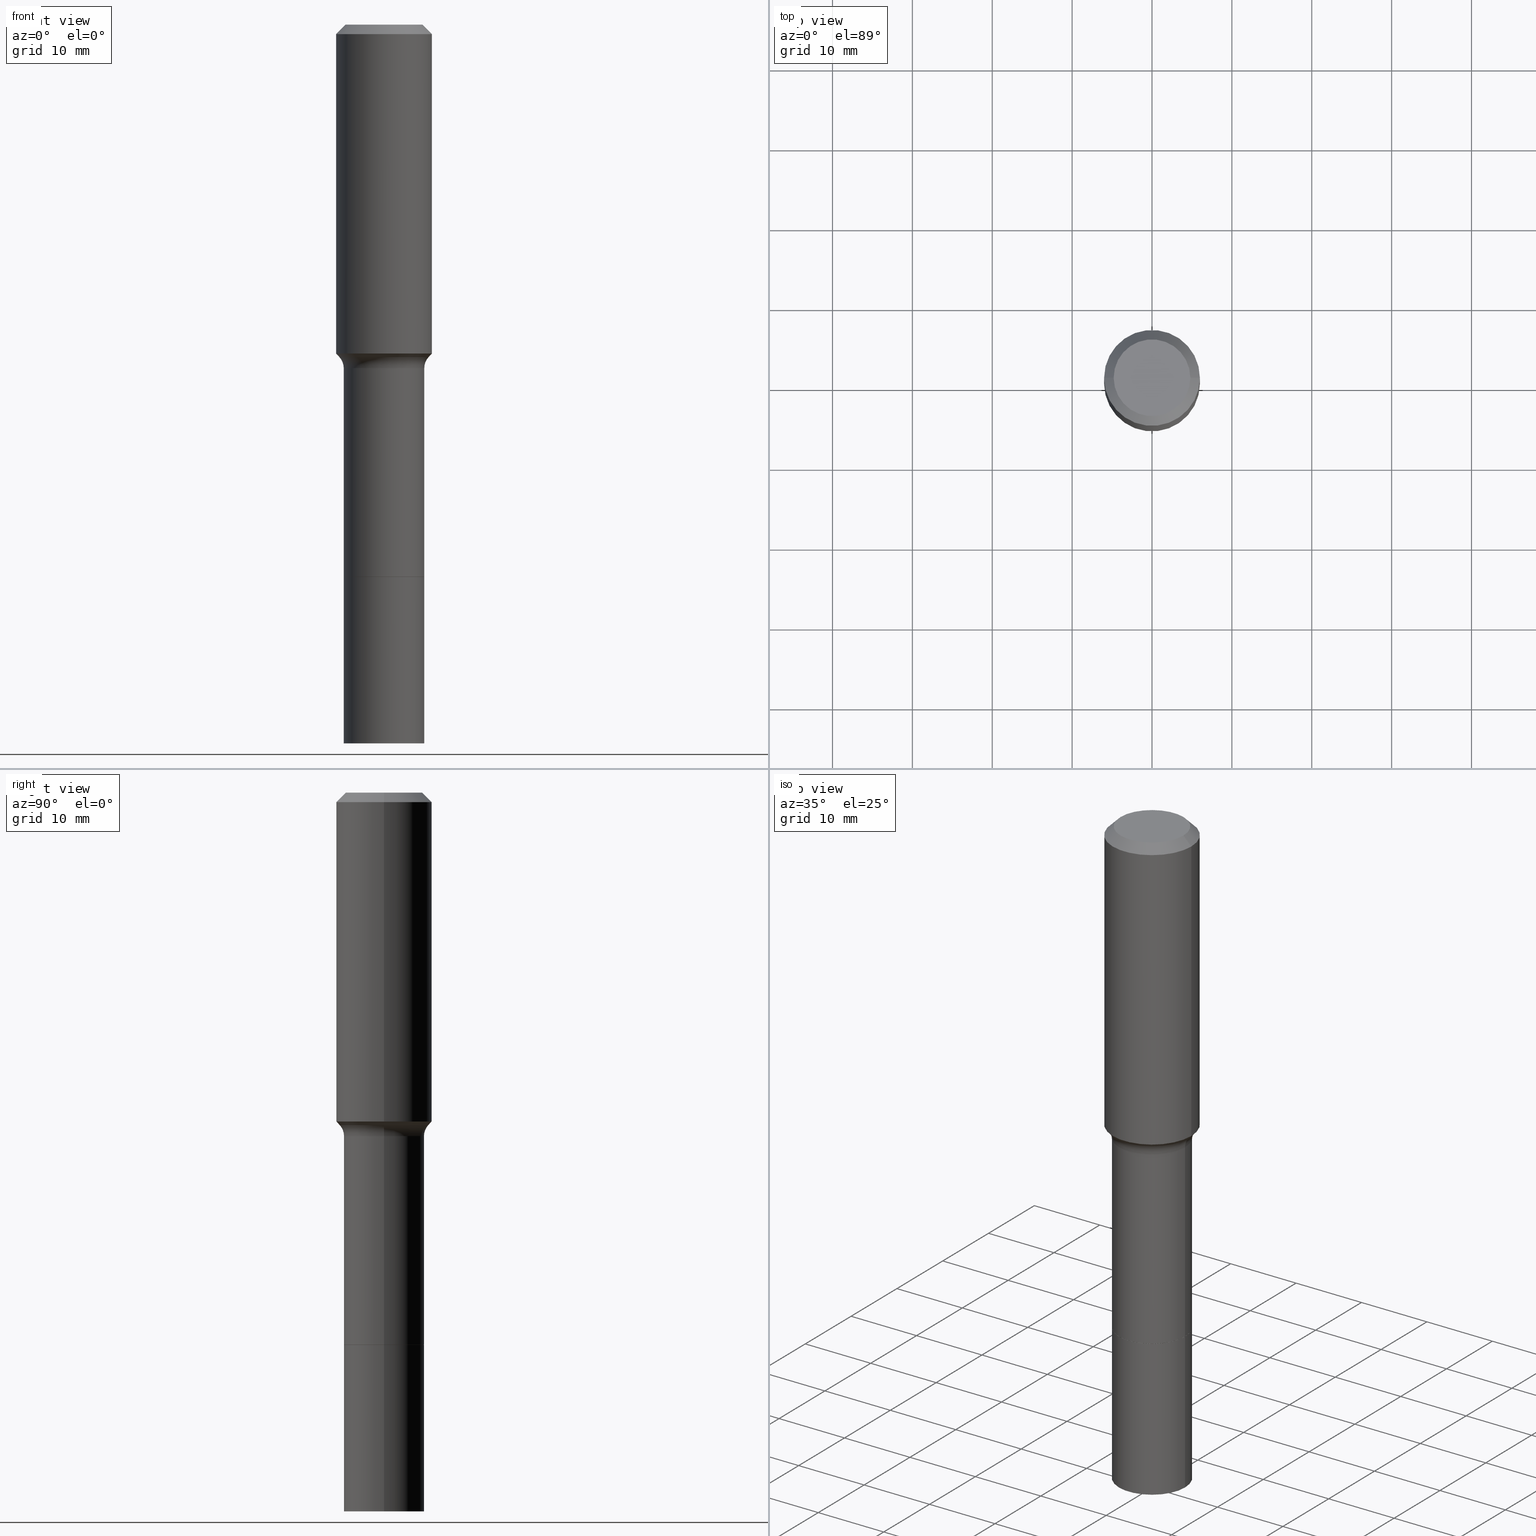
[diagram: canonical four-view strip — front | top / right | iso, engineering-drawing reading convention]
A machine part, canonical four-view strip (front | top / right | iso — engineering-drawing reading convention). The complete STEP part file that produces these views, byte-faithful:
ISO-10303-21;
HEADER;
FILE_DESCRIPTION (( 'STEP AP203' ),
    '1' );
FILE_NAME ('58525.STEP',
    '2025-04-01T15:24:17',
    ( '' ),
    ( '' ),
    'SwSTEP 2.0',
    'SolidWorks 2024',
    '' );
FILE_SCHEMA (( 'CONFIG_CONTROL_DESIGN' ));
ENDSEC;

DATA;
#1 = CARTESIAN_POINT ( 'NONE',  ( 6.656076996674703521E-29, -9.503113908063272325E-15, -2.721799999999999553 ) ) ;
#2 = CARTESIAN_POINT ( 'NONE',  ( 0.000000000000000000, 0.000000000000000000, 0.000000000000000000 ) ) ;
#3 = EDGE_CURVE ( 'NONE', #349, #101, #373, .T. ) ;
#4 = LINE ( 'NONE', #354, #144 ) ;
#5 = EDGE_CURVE ( 'NONE', #15, #183, #219, .T. ) ;
#6 = DIRECTION ( 'NONE',  ( -2.445468806185136597E-29, 3.491481338843145583E-15, 1.000000000000000000 ) ) ;
#7 = AXIS2_PLACEMENT_3D ( 'NONE', #264, #384, #58 ) ;
#8 = VECTOR ( 'NONE', #235, 39.37007874015748143 ) ;
#9 = DIRECTION ( 'NONE',  ( 1.000000000000000000, -6.982962677686265922E-15, 4.876176775795935793E-29 ) ) ;
#10 = ORIENTED_EDGE ( 'NONE', *, *, #515, .F. ) ;
#11 = DIRECTION ( 'NONE',  ( -2.445468806185136597E-29, 3.491481338843145583E-15, 1.000000000000000000 ) ) ;
#12 = APPROVAL ( #79, 'UNSPECIFIED' ) ;
#13 = DIRECTION ( 'NONE',  ( -1.000000000000000000, 7.105427357601001859E-15, 0.000000000000000000 ) ) ;
#14 = VERTEX_POINT ( 'NONE', #442 ) ;
#15 = VERTEX_POINT ( 'NONE', #174 ) ;
#16 = DIRECTION ( 'NONE',  ( -2.445468806185136877E-29, 3.491481338843145188E-15, 1.000000000000000000 ) ) ;
#17 = DIRECTION ( 'NONE',  ( -2.445468806185136597E-29, 3.491481338843145583E-15, 1.000000000000000000 ) ) ;
#18 = ADVANCED_FACE ( 'NONE', ( #403 ), #361, .T. ) ;
#19 = CIRCLE ( 'NONE', #243, 0.07999999999999996003 ) ;
#20 = ORIENTED_EDGE ( 'NONE', *, *, #194, .F. ) ;
#21 = CARTESIAN_POINT ( 'NONE',  ( 0.2784999999999999143, -7.856880456798722673E-15, -1.693299999999999583 ) ) ;
#22 = CIRCLE ( 'NONE', #277, 0.2361999999999999933 ) ;
#23 = EDGE_LOOP ( 'NONE', ( #178, #374, #195, #463 ) ) ;
#24 = ADVANCED_FACE ( 'NONE', ( #171 ), #326, .T. ) ;
#25 = CARTESIAN_POINT ( 'NONE',  ( 3.964982519632762252E-29, -5.660944208784569732E-15, -1.621358861582873567 ) ) ;
#26 = EDGE_LOOP ( 'NONE', ( #278, #142 ) ) ;
#27 = ADVANCED_FACE ( 'NONE', ( #329 ), #498, .F. ) ;
#28 = AXIS2_PLACEMENT_3D ( 'NONE', #325, #6, #401 ) ;
#29 = EDGE_LOOP ( 'NONE', ( #426, #196 ) ) ;
#30 = MANIFOLD_SOLID_BREP ( 'Body-Move/Copy2[1]', #41 ) ;
#31 = ORIENTED_EDGE ( 'NONE', *, *, #155, .T. ) ;
#32 = EDGE_LOOP ( 'NONE', ( #295, #371, #104, #406 ) ) ;
#33 = CARTESIAN_POINT ( 'NONE',  ( 0.2362000000000002153, -7.310319993254067046E-15, -1.621358861582873567 ) ) ;
#34 = LENGTH_MEASURE_WITH_UNIT ( LENGTH_MEASURE( 0.02539999999999999897 ), #478 );
#35 = AXIS2_PLACEMENT_3D ( 'NONE', #487, #438, #86 ) ;
#36 = APPLICATION_PROTOCOL_DEFINITION ( 'international standard', 'config_control_design', 1994, #359 ) ;
#37 = CARTESIAN_POINT ( 'NONE',  ( -0.1985000000000000098, -9.527685407844006907E-15, -3.543299999999999894 ) ) ;
#38 = CARTESIAN_POINT ( 'NONE',  ( 6.657299731077797444E-29, -9.504859648732694617E-15, -2.722300000000000164 ) ) ;
#39 = CARTESIAN_POINT ( 'NONE',  ( 6.657299731077797444E-29, -9.504859648732694617E-15, -2.722300000000000164 ) ) ;
#40 = PERSON_AND_ORGANIZATION ( #339, #70 ) ;
#41 = CLOSED_SHELL ( 'NONE', ( #464, #24, #180, #280 ) ) ;
#42 = DIRECTION ( 'NONE',  ( 1.000000000000000000, -6.982962677686266711E-15, 4.876176775795935793E-29 ) ) ;
#43 = AXIS2_PLACEMENT_3D ( 'NONE', #304, #261, #488 ) ;
#44 = CYLINDRICAL_SURFACE ( 'NONE', #232, 0.2362000000000001043 ) ;
#45 = VECTOR ( 'NONE', #417, 39.37007874015748143 ) ;
#46 = FACE_OUTER_BOUND ( 'NONE', #387, .T. ) ;
#47 = ORIENTED_EDGE ( 'NONE', *, *, #500, .F. ) ;
#48 = CARTESIAN_POINT ( 'NONE',  ( 1.155239464041865857E-30, -1.649375784469512352E-16, -0.04724000000000030258 ) ) ;
#49 = EDGE_LOOP ( 'NONE', ( #185, #114, #503, #423 ) ) ;
#50 = DIRECTION ( 'NONE',  ( -2.445468806185136597E-29, 3.491481338843145583E-15, 1.000000000000000000 ) ) ;
#51 = DIRECTION ( 'NONE',  ( 1.000000000000000000, -6.982962677686268288E-15, 0.000000000000000000 ) ) ;
#52 = CIRCLE ( 'NONE', #28, 0.1984999999999998987 ) ;
#53 = DIRECTION ( 'NONE',  ( -1.000000000000000000, 6.982962677686265922E-15, -4.876176775795935793E-29 ) ) ;
#54 = PLANE ( 'NONE',  #81 ) ;
#55 = VERTEX_POINT ( 'NONE', #139 ) ;
#56 = DIRECTION ( 'NONE',  ( 1.000000000000000000, -6.982962677686261189E-15, 0.000000000000000000 ) ) ;
#57 = EDGE_CURVE ( 'NONE', #141, #55, #281, .T. ) ;
#58 = DIRECTION ( 'NONE',  ( 1.000000000000000000, -6.982962677686269077E-15, 0.000000000000000000 ) ) ;
#59 = CARTESIAN_POINT ( 'NONE',  ( 8.665029620955794069E-29, -1.237136582792291707E-14, -3.543299999999999894 ) ) ;
#60 = APPROVAL ( #284, 'UNSPECIFIED' ) ;
#61 = AXIS2_PLACEMENT_3D ( 'NONE', #176, #328, #256 ) ;
#62 = CARTESIAN_POINT ( 'NONE',  ( -0.1889600000000000168, 1.401969416799070942E-15, 3.855188123706346622E-18 ) ) ;
#63 = CC_DESIGN_APPROVAL ( #12, ( #201 ) ) ;
#64 = CC_DESIGN_APPROVAL ( #106, ( #253 ) ) ;
#65 = EDGE_CURVE ( 'NONE', #349, #228, #198, .T. ) ;
#66 = ORIENTED_EDGE ( 'NONE', *, *, #172, .F. ) ;
#67 = CARTESIAN_POINT ( 'NONE',  ( 6.657299731077797444E-29, -9.504859648732694617E-15, -2.722300000000000164 ) ) ;
#68 = AXIS2_PLACEMENT_3D ( 'NONE', #170, #224, #290 ) ;
#69 = FACE_OUTER_BOUND ( 'NONE', #366, .T. ) ;
#70 = ORGANIZATION ( 'UNSPECIFIED', 'UNSPECIFIED', '' ) ;
#71 = ORIENTED_EDGE ( 'NONE', *, *, #199, .T. ) ;
#72 = APPROVAL_DATE_TIME ( #474, #60 ) ;
#73 = DESIGN_CONTEXT ( 'detailed design', #359, 'design' ) ;
#74 = EDGE_CURVE ( 'NONE', #311, #497, #251, .T. ) ;
#75 = ORIENTED_EDGE ( 'NONE', *, *, #267, .F. ) ;
#76 = APPLICATION_PROTOCOL_DEFINITION ( 'international standard', 'config_control_design', 1994, #78 ) ;
#77 = PLANE ( 'NONE',  #244 ) ;
#78 = APPLICATION_CONTEXT ( 'configuration controlled 3d designs of mechanical parts and assemblies' ) ;
#79 = APPROVAL_STATUS ( 'not_yet_approved' ) ;
#80 = LINE ( 'NONE', #203, #213 ) ;
#81 = AXIS2_PLACEMENT_3D ( 'NONE', #491, #414, #300 ) ;
#82 = COORDINATED_UNIVERSAL_TIME_OFFSET ( 5, 0, .BEHIND. ) ;
#83 = DIRECTION ( 'NONE',  ( 1.000000000000000000, -6.982962677686265133E-15, 0.000000000000000000 ) ) ;
#84 = EDGE_CURVE ( 'NONE', #297, #497, #167, .T. ) ;
#85 = DIRECTION ( 'NONE',  ( -2.445468806185136597E-29, 3.491481338843145583E-15, 1.000000000000000000 ) ) ;
#86 = DIRECTION ( 'NONE',  ( 1.000000000000000000, -6.982962677686271444E-15, 0.000000000000000000 ) ) ;
#87 = DIRECTION ( 'NONE',  ( 0.000000000000000000, 0.000000000000000000, 1.000000000000000000 ) ) ;
#88 = PRODUCT_RELATED_PRODUCT_CATEGORY ( 'detail', '', ( #266 ) ) ;
#89 = FACE_OUTER_BOUND ( 'NONE', #29, .T. ) ;
#90 = DIRECTION ( 'NONE',  ( 1.000000000000000000, -6.982962677686261189E-15, 0.000000000000000000 ) ) ;
#91 = AXIS2_PLACEMENT_3D ( 'NONE', #425, #99, #222 ) ;
#92 = CARTESIAN_POINT ( 'NONE',  ( -0.2199917038704659877, -4.158495516154243178E-15, -1.638740131195000060 ) ) ;
#93 = ORIENTED_EDGE ( 'NONE', *, *, #199, .F. ) ;
#94 = FACE_OUTER_BOUND ( 'NONE', #111, .T. ) ;
#95 = ADVANCED_FACE ( 'NONE', ( #46 ), #305, .T. ) ;
#96 = CARTESIAN_POINT ( 'NONE',  ( 0.1985000000000000098, -1.089097774025341894E-14, -2.722300000000000164 ) ) ;
#97 = LINE ( 'NONE', #173, #377 ) ;
#98 = DIRECTION ( 'NONE',  ( -2.445468806185136597E-29, 3.491481338843145583E-15, 1.000000000000000000 ) ) ;
#99 = DIRECTION ( 'NONE',  ( -2.445468806185136597E-29, 3.491481338843145583E-15, 1.000000000000000000 ) ) ;
#100 = AXIS2_PLACEMENT_3D ( 'NONE', #38, #322, #131 ) ;
#101 = VERTEX_POINT ( 'NONE', #218 ) ;
#102 = CARTESIAN_POINT ( 'NONE',  ( 8.665029620955794069E-29, -1.237136582792291707E-14, -3.543299999999999894 ) ) ;
#103 = CARTESIAN_POINT ( 'NONE',  ( 4.007487872281110922E-29, -5.721630587280711006E-15, -1.638740131195000060 ) ) ;
#104 = ORIENTED_EDGE ( 'NONE', *, *, #500, .T. ) ;
#105 = LINE ( 'NONE', #230, #187 ) ;
#106 = APPROVAL ( #165, 'UNSPECIFIED' ) ;
#107 = CARTESIAN_POINT ( 'NONE',  ( 6.657299731077797444E-29, -9.504859648732694617E-15, -2.722300000000000164 ) ) ;
#108 = CYLINDRICAL_SURFACE ( 'NONE', #395, 0.1985000000000000098 ) ;
#109 = EDGE_CURVE ( 'NONE', #121, #15, #513, .T. ) ;
#110 = AXIS2_PLACEMENT_3D ( 'NONE', #404, #476, #132 ) ;
#111 = EDGE_LOOP ( 'NONE', ( #453, #323, #495, #334 ) ) ;
#112 = FACE_OUTER_BOUND ( 'NONE', #23, .T. ) ;
#113 = DIRECTION ( 'NONE',  ( 1.000000000000000000, -6.982962677686265922E-15, 4.876176775795935793E-29 ) ) ;
#114 = ORIENTED_EDGE ( 'NONE', *, *, #515, .T. ) ;
#115 = EDGE_CURVE ( 'NONE', #183, #14, #52, .T. ) ;
#116 = ORIENTED_EDGE ( 'NONE', *, *, #422, .T. ) ;
#117 = ORIENTED_EDGE ( 'NONE', *, *, #510, .T. ) ;
#118 = CIRCLE ( 'NONE', #402, 0.1985000000000000098 ) ;
#119 = ADVANCED_FACE ( 'NONE', ( #514 ), #44, .T. ) ;
#120 = ORIENTED_EDGE ( 'NONE', *, *, #381, .T. ) ;
#121 = VERTEX_POINT ( 'NONE', #449 ) ;
#122 = APPROVAL_ROLE ( '' ) ;
#123 = CARTESIAN_POINT ( 'NONE',  ( 0.2361999999999999933, -1.814313362916447440E-15, -0.04724000000000030258 ) ) ;
#124 = EDGE_CURVE ( 'NONE', #344, #226, #97, .T. ) ;
#125 = CARTESIAN_POINT ( 'NONE',  ( 4.140912329513291253E-29, -5.912125351063097489E-15, -1.693299999999999583 ) ) ;
#126 = AXIS2_PLACEMENT_3D ( 'NONE', #150, #11, #188 ) ;
#127 = CALENDAR_DATE ( 2025, 1, 4 ) ;
#128 = LOCAL_TIME ( 11, 24, 17.00000000000000000, #516 ) ;
#129 = DIRECTION ( 'NONE',  ( -2.445468806185136597E-29, 3.491481338843145583E-15, 1.000000000000000000 ) ) ;
#130 = DIRECTION ( 'NONE',  ( -2.445468806185136597E-29, 3.491481338843145583E-15, 1.000000000000000000 ) ) ;
#131 = DIRECTION ( 'NONE',  ( -1.000000000000000000, 6.982962677686265922E-15, -4.876176775795935793E-29 ) ) ;
#132 = DIRECTION ( 'NONE',  ( -1.000000000000000000, 6.982962677686266711E-15, 0.000000000000000000 ) ) ;
#133 = ORIENTED_EDGE ( 'NONE', *, *, #285, .F. ) ;
#134 = EDGE_CURVE ( 'NONE', #226, #497, #238, .T. ) ;
#135 = CONICAL_SURFACE ( 'NONE', #151, 0.2199917038704659877, 0.7504915783575638599 ) ;
#136 = DIRECTION ( 'NONE',  ( 1.000000000000000000, -6.982962677686266711E-15, 0.000000000000000000 ) ) ;
#137 = EDGE_CURVE ( 'NONE', #160, #504, #158, .T. ) ;
#138 = DIRECTION ( 'NONE',  ( -2.445468806185136597E-29, 3.491481338843145583E-15, 1.000000000000000000 ) ) ;
#139 = CARTESIAN_POINT ( 'NONE',  ( -0.2199917038704659877, -4.158495516154243178E-15, -1.638740131195000060 ) ) ;
#140 = DIRECTION ( 'NONE',  ( -2.445468806185136597E-29, 3.491481338843145583E-15, 1.000000000000000000 ) ) ;
#141 = VERTEX_POINT ( 'NONE', #211 ) ;
#142 = ORIENTED_EDGE ( 'NONE', *, *, #422, .F. ) ;
#143 = DIRECTION ( 'NONE',  ( -6.982962677686266711E-15, -1.000000000000000000, 3.491481338843145583E-15 ) ) ;
#144 = VECTOR ( 'NONE', #287, 39.37007874015748143 ) ;
#145 = ORIENTED_EDGE ( 'NONE', *, *, #74, .F. ) ;
#146 = DIRECTION ( 'NONE',  ( -2.445468806185136877E-29, 3.491481338843145188E-15, 1.000000000000000000 ) ) ;
#147 = ORIENTED_EDGE ( 'NONE', *, *, #267, .T. ) ;
#148 = CYLINDRICAL_SURFACE ( 'NONE', #468, 0.1985000000000000098 ) ;
#149 = VERTEX_POINT ( 'NONE', #360 ) ;
#150 = CARTESIAN_POINT ( 'NONE',  ( 6.657299731077797444E-29, -9.504859648732694617E-15, -2.722300000000000164 ) ) ;
#151 = AXIS2_PLACEMENT_3D ( 'NONE', #482, #50, #215 ) ;
#152 = AXIS2_PLACEMENT_3D ( 'NONE', #102, #454, #56 ) ;
#153 = ORIENTED_EDGE ( 'NONE', *, *, #57, .T. ) ;
#154 = ORIENTED_EDGE ( 'NONE', *, *, #5, .F. ) ;
#155 = EDGE_CURVE ( 'NONE', #55, #311, #447, .T. ) ;
#156 = ORIENTED_EDGE ( 'NONE', *, *, #484, .T. ) ;
#157 = PERSON_AND_ORGANIZATION_ROLE ( 'design_owner' ) ;
#158 = CIRCLE ( 'NONE', #68, 0.1980000000000000093 ) ;
#159 = APPROVAL_PERSON_ORGANIZATION ( #469, #106, #122 ) ;
#160 = VERTEX_POINT ( 'NONE', #399 ) ;
#161 = PERSON_AND_ORGANIZATION ( #339, #70 ) ;
#162 = UNCERTAINTY_MEASURE_WITH_UNIT (LENGTH_MEASURE( 1.000000000000000082E-05 ), #197, 'distance_accuracy_value', 'NONE');
#163 = DATE_AND_TIME ( #127, #446 ) ;
#164 = DIRECTION ( 'NONE',  ( 1.000000000000000000, -6.982962677686265922E-15, 4.876176775795935793E-29 ) ) ;
#165 = APPROVAL_STATUS ( 'not_yet_approved' ) ;
#166 = AXIS2_PLACEMENT_3D ( 'NONE', #59, #301, #90 ) ;
#167 = LINE ( 'NONE', #294, #418 ) ;
#168 =( GEOMETRIC_REPRESENTATION_CONTEXT ( 3 ) GLOBAL_UNCERTAINTY_ASSIGNED_CONTEXT ( ( #162 ) ) GLOBAL_UNIT_ASSIGNED_CONTEXT ( ( #197, #396, #276 ) ) REPRESENTATION_CONTEXT ( 'NONE', 'WORKASPACE' ) );
#169 = PLANE ( 'NONE',  #100 ) ;
#170 = CARTESIAN_POINT ( 'NONE',  ( 6.657299731077797444E-29, -9.504859648732694617E-15, -2.722300000000000164 ) ) ;
#171 = FACE_OUTER_BOUND ( 'NONE', #26, .T. ) ;
#172 = EDGE_CURVE ( 'NONE', #55, #14, #19, .T. ) ;
#173 = CARTESIAN_POINT ( 'NONE',  ( 0.2361999999999999933, -1.785387205520586782E-15, -0.04724000000000030258 ) ) ;
#174 = CARTESIAN_POINT ( 'NONE',  ( 0.1985000000000000930, -1.088923199958399665E-14, -2.721799999999999553 ) ) ;
#175 = AXIS2_PLACEMENT_3D ( 'NONE', #450, #98, #455 ) ;
#176 = CARTESIAN_POINT ( 'NONE',  ( 1.155239464041865857E-30, -1.649375784469512352E-16, -0.04724000000000030258 ) ) ;
#177 = DIRECTION ( 'NONE',  ( 2.438088387897960049E-29, -3.491481338843145188E-15, -1.000000000000000000 ) ) ;
#178 = ORIENTED_EDGE ( 'NONE', *, *, #137, .T. ) ;
#179 = LINE ( 'NONE', #338, #8 ) ;
#180 = ADVANCED_FACE ( 'NONE', ( #181 ), #331, .T. ) ;
#181 = FACE_OUTER_BOUND ( 'NONE', #302, .T. ) ;
#182 = EDGE_LOOP ( 'NONE', ( #147, #236 ) ) ;
#183 = VERTEX_POINT ( 'NONE', #473 ) ;
#184 = CARTESIAN_POINT ( 'NONE',  ( 0.1980000000000000093, -1.088748625891457435E-14, -2.722300000000000164 ) ) ;
#185 = ORIENTED_EDGE ( 'NONE', *, *, #65, .T. ) ;
#186 = LINE ( 'NONE', #184, #223 ) ;
#187 = VECTOR ( 'NONE', #16, 39.37007874015748143 ) ;
#188 = DIRECTION ( 'NONE',  ( 1.000000000000000000, -6.982962677686264344E-15, 0.000000000000000000 ) ) ;
#189 = ORIENTED_EDGE ( 'NONE', *, *, #115, .F. ) ;
#190 = ADVANCED_FACE ( 'NONE', ( #293 ), #433, .F. ) ;
#191 = DIRECTION ( 'NONE',  ( 0.6819983600625000308, -2.208861293262491186E-15, 0.7313537016191690165 ) ) ;
#192 = AXIS2_PLACEMENT_3D ( 'NONE', #216, #254, #247 ) ;
#193 = ORIENTED_EDGE ( 'NONE', *, *, #5, .T. ) ;
#194 = EDGE_CURVE ( 'NONE', #504, #160, #345, .T. ) ;
#195 = ORIENTED_EDGE ( 'NONE', *, *, #303, .F. ) ;
#196 = ORIENTED_EDGE ( 'NONE', *, *, #285, .T. ) ;
#197 =( CONVERSION_BASED_UNIT ( 'INCH', #34 ) LENGTH_UNIT ( ) NAMED_UNIT ( #327 ) );
#198 = CIRCLE ( 'NONE', #166, 0.1985000000000000098 ) ;
#199 = EDGE_CURVE ( 'NONE', #121, #14, #4, .T. ) ;
#200 = APPROVAL_PERSON_ORGANIZATION ( #317, #60, #357 ) ;
#201 = PRODUCT_DEFINITION_FORMATION_WITH_SPECIFIED_SOURCE ( 'ANY', '', #266, .NOT_KNOWN. ) ;
#202 = COORDINATED_UNIVERSAL_TIME_OFFSET ( 5, 0, .BEHIND. ) ;
#203 = CARTESIAN_POINT ( 'NONE',  ( 0.2199917038704659877, -7.257824444808784906E-15, -1.638740131195000060 ) ) ;
#204 = ADVANCED_FACE ( 'NONE', ( #441 ), #506, .T. ) ;
#205 = COORDINATED_UNIVERSAL_TIME_OFFSET ( 5, 0, .BEHIND. ) ;
#206 = MANIFOLD_SOLID_BREP ( 'Body-Move/Copy2[2]', #355 ) ;
#207 = CARTESIAN_POINT ( 'NONE',  ( 1.155239464041865857E-30, -1.649375784469512352E-16, -0.04724000000000030258 ) ) ;
#208 = DIRECTION ( 'NONE',  ( 1.000000000000000000, -6.982962677686264344E-15, 0.000000000000000000 ) ) ;
#209 = PERSON_AND_ORGANIZATION ( #339, #70 ) ;
#210 = AXIS2_PLACEMENT_3D ( 'NONE', #286, #437, #42 ) ;
#211 = CARTESIAN_POINT ( 'NONE',  ( 0.2199917038704659877, -7.257824444808784906E-15, -1.638740131195000060 ) ) ;
#212 = ADVANCED_FACE ( 'NONE', ( #94 ), #458, .T. ) ;
#213 = VECTOR ( 'NONE', #191, 39.37007874015748143 ) ;
#214 = EDGE_LOOP ( 'NONE', ( #462, #75, #269, #117 ) ) ;
#215 = DIRECTION ( 'NONE',  ( 1.000000000000000000, -6.982962677686269077E-15, 0.000000000000000000 ) ) ;
#216 = CARTESIAN_POINT ( 'NONE',  ( 4.140912329513291253E-29, -5.912125351063097489E-15, -1.693299999999999583 ) ) ;
#217 = CC_DESIGN_PERSON_AND_ORGANIZATION_ASSIGNMENT ( #161, #313, ( #201 ) ) ;
#218 = CARTESIAN_POINT ( 'NONE',  ( 0.1985000000000000098, -1.089097774025341894E-14, -2.722300000000000164 ) ) ;
#219 = LINE ( 'NONE', #411, #410 ) ;
#220 = ADVANCED_FACE ( 'NONE', ( #379 ), #108, .T. ) ;
#221 = CIRCLE ( 'NONE', #386, 0.1985000000000000098 ) ;
#222 = DIRECTION ( 'NONE',  ( 1.000000000000000000, -6.982962677686264344E-15, 0.000000000000000000 ) ) ;
#223 = VECTOR ( 'NONE', #340, 39.37007874015748143 ) ;
#224 = DIRECTION ( 'NONE',  ( -2.445468806185136597E-29, 3.491481338843145583E-15, 1.000000000000000000 ) ) ;
#225 = ORIENTED_EDGE ( 'NONE', *, *, #443, .F. ) ;
#226 = VERTEX_POINT ( 'NONE', #123 ) ;
#227 = DIRECTION ( 'NONE',  ( -2.445468806185136597E-29, 3.491481338843145583E-15, 1.000000000000000000 ) ) ;
#228 = VERTEX_POINT ( 'NONE', #37 ) ;
#229 = ORIENTED_EDGE ( 'NONE', *, *, #137, .F. ) ;
#230 = CARTESIAN_POINT ( 'NONE',  ( 0.2362000000000001043, -1.649375784469496920E-15, 1.151752954443000508E-29 ) ) ;
#231 = VERTEX_POINT ( 'NONE', #33 ) ;
#232 = AXIS2_PLACEMENT_3D ( 'NONE', #485, #138, #408 ) ;
#233 = ADVANCED_FACE ( 'NONE', ( #69 ), #77, .F. ) ;
#234 = ORIENTED_EDGE ( 'NONE', *, *, #335, .T. ) ;
#235 = DIRECTION ( 'NONE',  ( -0.7071067811860887176, 7.493145998868695975E-15, 0.7071067811870063169 ) ) ;
#236 = ORIENTED_EDGE ( 'NONE', *, *, #306, .T. ) ;
#237 = ADVANCED_FACE ( 'NONE', ( #363 ), #135, .T. ) ;
#238 = CIRCLE ( 'NONE', #452, 0.2361999999999999933 ) ;
#239 = EDGE_LOOP ( 'NONE', ( #145, #156, #234, #448 ) ) ;
#240 = CALENDAR_DATE ( 2025, 1, 4 ) ;
#241 = CC_DESIGN_SECURITY_CLASSIFICATION ( #421, ( #201 ) ) ;
#242 = DATE_TIME_ROLE ( 'creation_date' ) ;
#243 = AXIS2_PLACEMENT_3D ( 'NONE', #320, #479, #13 ) ;
#244 = AXIS2_PLACEMENT_3D ( 'NONE', #67, #389, #164 ) ;
#245 = DATE_AND_TIME ( #435, #270 ) ;
#246 = DIRECTION ( 'NONE',  ( 1.000000000000000000, -6.982962677686266711E-15, 0.000000000000000000 ) ) ;
#247 = DIRECTION ( 'NONE',  ( 1.000000000000000000, -6.982962677686265922E-15, 4.883557194083112901E-29 ) ) ;
#248 = APPROVAL_DATE_TIME ( #163, #106 ) ;
#249 = LINE ( 'NONE', #358, #45 ) ;
#250 = ADVANCED_FACE ( 'NONE', ( #314 ), #319, .T. ) ;
#251 = LINE ( 'NONE', #409, #480 ) ;
#252 = CONICAL_SURFACE ( 'NONE', #91, 0.1980000000000000093, 0.7853981633967994647 ) ;
#253 = PRODUCT_DEFINITION ( 'UNKNOWN', '', #201, #73 ) ;
#254 = DIRECTION ( 'NONE',  ( -2.445468806185136597E-29, 3.491481338843145583E-15, 1.000000000000000000 ) ) ;
#255 = AXIS2_PLACEMENT_3D ( 'NONE', #25, #140, #372 ) ;
#256 = DIRECTION ( 'NONE',  ( -1.000000000000000000, 6.982962677686266711E-15, 0.000000000000000000 ) ) ;
#257 = DIRECTION ( 'NONE',  ( -0.6819983600625000308, 7.399397606724292887E-15, 0.7313537016191690165 ) ) ;
#258 = DIRECTION ( 'NONE',  ( -2.445468806185136877E-29, 3.491481338843145188E-15, 1.000000000000000000 ) ) ;
#259 = AXIS2_PLACEMENT_3D ( 'NONE', #2, #365, #9 ) ;
#260 = AXIS2_PLACEMENT_3D ( 'NONE', #440, #518, #324 ) ;
#261 = DIRECTION ( 'NONE',  ( -2.445468806185136597E-29, 3.491481338843145583E-15, 1.000000000000000000 ) ) ;
#262 = ORIENTED_EDGE ( 'NONE', *, *, #134, .T. ) ;
#263 = FACE_OUTER_BOUND ( 'NONE', #182, .T. ) ;
#264 = CARTESIAN_POINT ( 'NONE',  ( 4.007487872281110922E-29, -5.721630587280711006E-15, -1.638740131195000060 ) ) ;
#265 = DIRECTION ( 'NONE',  ( -2.445468806185136597E-29, 3.491481338843145583E-15, 1.000000000000000000 ) ) ;
#266 = PRODUCT ( '58525', '58525', '', ( #431 ) ) ;
#267 = EDGE_CURVE ( 'NONE', #297, #344, #428, .T. ) ;
#268 = CARTESIAN_POINT ( 'NONE',  ( 4.007487872281110922E-29, -5.721630587280711006E-15, -1.638740131195000060 ) ) ;
#269 = ORIENTED_EDGE ( 'NONE', *, *, #84, .T. ) ;
#270 = LOCAL_TIME ( 11, 24, 17.00000000000000000, #511 ) ;
#271 = CARTESIAN_POINT ( 'NONE',  ( 0.1889600000000000168, -1.540873453589747738E-15, 3.855188123725863225E-18 ) ) ;
#272 = ORIENTED_EDGE ( 'NONE', *, *, #74, .T. ) ;
#273 = EDGE_CURVE ( 'NONE', #231, #311, #316, .T. ) ;
#274 = ORIENTED_EDGE ( 'NONE', *, *, #273, .F. ) ;
#275 = CIRCLE ( 'NONE', #43, 0.1985000000000000930 ) ;
#276 =( NAMED_UNIT ( * ) SI_UNIT ( $, .STERADIAN. ) SOLID_ANGLE_UNIT ( ) );
#277 = AXIS2_PLACEMENT_3D ( 'NONE', #207, #318, #439 ) ;
#278 = ORIENTED_EDGE ( 'NONE', *, *, #65, .F. ) ;
#279 = SECURITY_CLASSIFICATION_LEVEL ( 'unclassified' ) ;
#280 = ADVANCED_FACE ( 'NONE', ( #89 ), #169, .F. ) ;
#281 = CIRCLE ( 'NONE', #292, 0.2199917038704659877 ) ;
#282 = CIRCLE ( 'NONE', #152, 0.1985000000000000098 ) ;
#283 = DIRECTION ( 'NONE',  ( -2.445468806185136877E-29, 3.491481338843145188E-15, 1.000000000000000000 ) ) ;
#284 = APPROVAL_STATUS ( 'not_yet_approved' ) ;
#285 = EDGE_CURVE ( 'NONE', #149, #101, #221, .T. ) ;
#286 = CARTESIAN_POINT ( 'NONE',  ( 0.000000000000000000, 0.000000000000000000, 0.000000000000000000 ) ) ;
#287 = DIRECTION ( 'NONE',  ( -2.445468806185136877E-29, 3.491481338843145188E-15, 1.000000000000000000 ) ) ;
#288 = CC_DESIGN_PERSON_AND_ORGANIZATION_ASSIGNMENT ( #40, #432, ( #421 ) ) ;
#289 = CARTESIAN_POINT ( 'NONE',  ( 6.657299731077797444E-29, -9.504859648732694617E-15, -2.722300000000000164 ) ) ;
#290 = DIRECTION ( 'NONE',  ( 1.000000000000000000, -6.982962677686264344E-15, 0.000000000000000000 ) ) ;
#291 = ORIENTED_EDGE ( 'NONE', *, *, #436, .T. ) ;
#292 = AXIS2_PLACEMENT_3D ( 'NONE', #103, #265, #416 ) ;
#293 = FACE_OUTER_BOUND ( 'NONE', #32, .T. ) ;
#294 = CARTESIAN_POINT ( 'NONE',  ( -0.2361999999999999933, 1.484438206022545019E-15, -0.04724000000000030258 ) ) ;
#295 = ORIENTED_EDGE ( 'NONE', *, *, #390, .F. ) ;
#296 = DIRECTION ( 'NONE',  ( -2.445468806185136597E-29, 3.491481338843145583E-15, 1.000000000000000000 ) ) ;
#297 = VERTEX_POINT ( 'NONE', #62 ) ;
#298 = ORIENTED_EDGE ( 'NONE', *, *, #3, .T. ) ;
#299 = VECTOR ( 'NONE', #257, 39.37007874015748143 ) ;
#300 = DIRECTION ( 'NONE',  ( -1.000000000000000000, 6.982962677686265922E-15, -4.876176775795935793E-29 ) ) ;
#301 = DIRECTION ( 'NONE',  ( -2.445468806185136597E-29, 3.491481338843145583E-15, 1.000000000000000000 ) ) ;
#302 = EDGE_LOOP ( 'NONE', ( #10, #116, #298, #133 ) ) ;
#303 = EDGE_CURVE ( 'NONE', #15, #121, #275, .T. ) ;
#304 = CARTESIAN_POINT ( 'NONE',  ( 6.656076996674703521E-29, -9.503113908063272325E-15, -2.721799999999999553 ) ) ;
#305 = CONICAL_SURFACE ( 'NONE', #61, 0.2361999999999999933, 0.7853981633974450594 ) ;
#306 = EDGE_CURVE ( 'NONE', #344, #297, #445, .T. ) ;
#307 = ORIENTED_EDGE ( 'NONE', *, *, #84, .F. ) ;
#308 = EDGE_LOOP ( 'NONE', ( #225, #309, #291, #477 ) ) ;
#309 = ORIENTED_EDGE ( 'NONE', *, *, #194, .T. ) ;
#310 = DATE_AND_TIME ( #350, #424 ) ;
#311 = VERTEX_POINT ( 'NONE', #457 ) ;
#312 = CC_DESIGN_DATE_AND_TIME_ASSIGNMENT ( #397, #512, ( #421 ) ) ;
#313 = PERSON_AND_ORGANIZATION_ROLE ( 'creator' ) ;
#314 = FACE_OUTER_BOUND ( 'NONE', #348, .T. ) ;
#315 = EDGE_CURVE ( 'NONE', #101, #149, #118, .T. ) ;
#316 = CIRCLE ( 'NONE', #490, 0.2362000000000002153 ) ;
#317 = PERSON_AND_ORGANIZATION ( #339, #70 ) ;
#318 = DIRECTION ( 'NONE',  ( -2.445468806185136597E-29, 3.491481338843145583E-15, 1.000000000000000000 ) ) ;
#319 = CYLINDRICAL_SURFACE ( 'NONE', #210, 0.2362000000000001043 ) ;
#320 = CARTESIAN_POINT ( 'NONE',  ( -0.2784999999999999143, -3.933263831971218686E-15, -1.693299999999999583 ) ) ;
#321 = CALENDAR_DATE ( 2025, 1, 4 ) ;
#322 = DIRECTION ( 'NONE',  ( 2.438088387897960049E-29, -3.491481338843145188E-15, -1.000000000000000000 ) ) ;
#323 = ORIENTED_EDGE ( 'NONE', *, *, #390, .T. ) ;
#324 = DIRECTION ( 'NONE',  ( 1.000000000000000000, -6.982962677686266711E-15, 4.876185090822587894E-29 ) ) ;
#325 = CARTESIAN_POINT ( 'NONE',  ( 4.140912329513291253E-29, -5.912125351063097489E-15, -1.693299999999999583 ) ) ;
#326 = PLANE ( 'NONE',  #471 ) ;
#327 = DIMENSIONAL_EXPONENTS ( 1.000000000000000000, 0.000000000000000000, 0.000000000000000000, 0.000000000000000000, 0.000000000000000000, 0.000000000000000000, 0.000000000000000000 ) ;
#328 = DIRECTION ( 'NONE',  ( 2.445468806185136597E-29, -3.491481338843145583E-15, -1.000000000000000000 ) ) ;
#329 = FACE_OUTER_BOUND ( 'NONE', #391, .T. ) ;
#330 = DIRECTION ( 'NONE',  ( 1.000000000000000000, -6.982962677686271444E-15, 0.000000000000000000 ) ) ;
#331 = CYLINDRICAL_SURFACE ( 'NONE', #35, 0.1985000000000000098 ) ;
#332 = ORIENTED_EDGE ( 'NONE', *, *, #303, .T. ) ;
#333 = CARTESIAN_POINT ( 'NONE',  ( -9.427742298522546243E-47, 1.346031739168365344E-32, 3.855188123715862256E-18 ) ) ;
#334 = ORIENTED_EDGE ( 'NONE', *, *, #484, .F. ) ;
#335 = EDGE_CURVE ( 'NONE', #231, #226, #105, .T. ) ;
#336 = VECTOR ( 'NONE', #146, 39.37007874015748143 ) ;
#337 = AXIS2_PLACEMENT_3D ( 'NONE', #333, #17, #460 ) ;
#338 = CARTESIAN_POINT ( 'NONE',  ( -0.1980000000000000093, -8.097985031927696577E-15, -2.722300000000000164 ) ) ;
#339 = PERSON ( 'UNSPECIFIED', 'UNSPECIFIED', 'UNSPECIFIED', ('UNSPECIFIED'), ('UNSPECIFIED'), ('UNSPECIFIED') ) ;
#340 = DIRECTION ( 'NONE',  ( 0.7071067811860887176, -2.468850131077450926E-15, 0.7071067811870063169 ) ) ;
#341 = EDGE_LOOP ( 'NONE', ( #332, #71, #189, #154 ) ) ;
#342 = PRODUCT_DEFINITION_SHAPE ( 'NONE', 'NONE',  #253 ) ;
#343 = DIRECTION ( 'NONE',  ( -2.445468806185136597E-29, 3.491481338843145583E-15, 1.000000000000000000 ) ) ;
#344 = VERTEX_POINT ( 'NONE', #271 ) ;
#345 = CIRCLE ( 'NONE', #356, 0.1980000000000000093 ) ;
#346 = CONICAL_SURFACE ( 'NONE', #126, 0.1980000000000000093, 0.7853981633967994647 ) ;
#347 = ORIENTED_EDGE ( 'NONE', *, *, #124, .T. ) ;
#348 = EDGE_LOOP ( 'NONE', ( #413, #272, #376, #493 ) ) ;
#349 = VERTEX_POINT ( 'NONE', #412 ) ;
#350 = CALENDAR_DATE ( 2025, 1, 4 ) ;
#351 = CARTESIAN_POINT ( 'NONE',  ( 0.000000000000000000, 0.000000000000000000, 0.000000000000000000 ) ) ;
#352 = ADVANCED_FACE ( 'NONE', ( #112 ), #252, .T. ) ;
#353 = APPROVAL_ROLE ( '' ) ;
#354 = CARTESIAN_POINT ( 'NONE',  ( -0.1985000000000000098, 1.410427330483798938E-15, -9.764086154155988574E-30 ) ) ;
#355 = CLOSED_SHELL ( 'NONE', ( #352, #95, #250, #237, #190, #18, #220, #27, #212, #119, #204, #405, #233, #427 ) ) ;
#356 = AXIS2_PLACEMENT_3D ( 'NONE', #39, #362, #208 ) ;
#357 = APPROVAL_ROLE ( '' ) ;
#358 = CARTESIAN_POINT ( 'NONE',  ( -0.1985000000000000098, -8.094432318248894890E-15, -2.722300000000000164 ) ) ;
#359 = APPLICATION_CONTEXT ( 'configuration controlled 3d designs of mechanical parts and assemblies' ) ;
#360 = CARTESIAN_POINT ( 'NONE',  ( -0.1985000000000000098, -9.527685407844006907E-15, -2.722300000000000164 ) ) ;
#361 = CYLINDRICAL_SURFACE ( 'NONE', #259, 0.1985000000000000098 ) ;
#362 = DIRECTION ( 'NONE',  ( -2.445468806185136597E-29, 3.491481338843145583E-15, 1.000000000000000000 ) ) ;
#363 = FACE_OUTER_BOUND ( 'NONE', #456, .T. ) ;
#364 = DIRECTION ( 'NONE',  ( -2.445468806185136597E-29, 3.491481338843145583E-15, 1.000000000000000000 ) ) ;
#365 = DIRECTION ( 'NONE',  ( -2.445468806185136597E-29, 3.491481338843145583E-15, 1.000000000000000000 ) ) ;
#366 = EDGE_LOOP ( 'NONE', ( #229, #20 ) ) ;
#367 = AXIS2_PLACEMENT_3D ( 'NONE', #268, #369, #419 ) ;
#368 = CC_DESIGN_PERSON_AND_ORGANIZATION_ASSIGNMENT ( #470, #467, ( #201 ) ) ;
#369 = DIRECTION ( 'NONE',  ( -2.445468806185136597E-29, 3.491481338843145583E-15, 1.000000000000000000 ) ) ;
#370 = DIRECTION ( 'NONE',  ( -0.7071067811865452413, 2.468850131082233000E-15, -0.7071067811865497932 ) ) ;
#371 = ORIENTED_EDGE ( 'NONE', *, *, #172, .T. ) ;
#372 = DIRECTION ( 'NONE',  ( 1.000000000000000000, -6.982962677686266711E-15, 0.000000000000000000 ) ) ;
#373 = LINE ( 'NONE', #96, #336 ) ;
#374 = ORIENTED_EDGE ( 'NONE', *, *, #443, .T. ) ;
#375 = FACE_OUTER_BOUND ( 'NONE', #308, .T. ) ;
#376 = ORIENTED_EDGE ( 'NONE', *, *, #134, .F. ) ;
#377 = VECTOR ( 'NONE', #444, 39.37007874015748143 ) ;
#378 = DIRECTION ( 'NONE',  ( 1.000000000000000000, -6.982962677686271444E-15, 0.000000000000000000 ) ) ;
#379 = FACE_OUTER_BOUND ( 'NONE', #489, .T. ) ;
#380 = AXIS2_PLACEMENT_3D ( 'NONE', #351, #87, #472 ) ;
#381 = EDGE_CURVE ( 'NONE', #141, #183, #466, .T. ) ;
#382 = CARTESIAN_POINT ( 'NONE',  ( 6.657299731077797444E-29, -9.504859648732694617E-15, -2.722300000000000164 ) ) ;
#383 = DIRECTION ( 'NONE',  ( -2.445468806185136597E-29, 3.491481338843145583E-15, 1.000000000000000000 ) ) ;
#384 = DIRECTION ( 'NONE',  ( -2.445468806185136597E-29, 3.491481338843145583E-15, 1.000000000000000000 ) ) ;
#385 = ORIENTED_EDGE ( 'NONE', *, *, #115, .T. ) ;
#386 = AXIS2_PLACEMENT_3D ( 'NONE', #289, #296, #378 ) ;
#387 = EDGE_LOOP ( 'NONE', ( #501, #347, #262, #307 ) ) ;
#388 = ADVANCED_BREP_SHAPE_REPRESENTATION ( '58525', ( #30, #206, #380 ), #168 ) ;
#389 = DIRECTION ( 'NONE',  ( -2.438088387897960049E-29, 3.491481338843145188E-15, 1.000000000000000000 ) ) ;
#390 = EDGE_CURVE ( 'NONE', #55, #141, #499, .T. ) ;
#391 = EDGE_LOOP ( 'NONE', ( #66, #507, #120, #385 ) ) ;
#392 = SHAPE_DEFINITION_REPRESENTATION ( #342, #388 ) ;
#393 = PERSON_AND_ORGANIZATION ( #339, #70 ) ;
#394 = CARTESIAN_POINT ( 'NONE',  ( -0.2361999999999999933, -1.234638951750402943E-15, -0.04724000000000030258 ) ) ;
#395 = AXIS2_PLACEMENT_3D ( 'NONE', #420, #383, #113 ) ;
#396 =( NAMED_UNIT ( * ) PLANE_ANGLE_UNIT ( ) SI_UNIT ( $, .RADIAN. ) );
#397 = DATE_AND_TIME ( #240, #461 ) ;
#398 = CARTESIAN_POINT ( 'NONE',  ( -0.1980000000000000093, -8.095335804753583010E-15, -2.722300000000000164 ) ) ;
#399 = CARTESIAN_POINT ( 'NONE',  ( 0.1980000000000000093, -1.088748625891457435E-14, -2.722300000000000164 ) ) ;
#400 = PERSON_AND_ORGANIZATION_ROLE ( 'creator' ) ;
#401 = DIRECTION ( 'NONE',  ( 1.000000000000000000, -6.982962677686265133E-15, 0.000000000000000000 ) ) ;
#402 = AXIS2_PLACEMENT_3D ( 'NONE', #107, #343, #496 ) ;
#403 = FACE_OUTER_BOUND ( 'NONE', #341, .T. ) ;
#404 = CARTESIAN_POINT ( 'NONE',  ( 1.155239464041865857E-30, -1.649375784469512352E-16, -0.04724000000000030258 ) ) ;
#405 = ADVANCED_FACE ( 'NONE', ( #263 ), #54, .F. ) ;
#406 = ORIENTED_EDGE ( 'NONE', *, *, #381, .F. ) ;
#407 = CC_DESIGN_APPROVAL ( #60, ( #421 ) ) ;
#408 = DIRECTION ( 'NONE',  ( 1.000000000000000000, -6.982962677686266711E-15, 4.876176775795935793E-29 ) ) ;
#409 = CARTESIAN_POINT ( 'NONE',  ( -0.2362000000000001043, 1.678301941865357380E-15, -1.161852468318209317E-29 ) ) ;
#410 = VECTOR ( 'NONE', #258, 39.37007874015748143 ) ;
#411 = CARTESIAN_POINT ( 'NONE',  ( 0.1985000000000000098, -1.386118091520723926E-15, 9.679210899954933278E-30 ) ) ;
#412 = CARTESIAN_POINT ( 'NONE',  ( 0.1985000000000000098, -1.375748391944363982E-14, -3.543299999999999894 ) ) ;
#413 = ORIENTED_EDGE ( 'NONE', *, *, #273, .T. ) ;
#414 = DIRECTION ( 'NONE',  ( 2.438088387897960049E-29, -3.491481338843145188E-15, -1.000000000000000000 ) ) ;
#415 = CC_DESIGN_PERSON_AND_ORGANIZATION_ASSIGNMENT ( #209, #400, ( #253 ) ) ;
#416 = DIRECTION ( 'NONE',  ( 1.000000000000000000, -6.982962677686269077E-15, 0.000000000000000000 ) ) ;
#417 = DIRECTION ( 'NONE',  ( -2.445468806185136877E-29, 3.491481338843145188E-15, 1.000000000000000000 ) ) ;
#418 = VECTOR ( 'NONE', #370, 39.37007874015748143 ) ;
#419 = DIRECTION ( 'NONE',  ( 1.000000000000000000, -6.982962677686269077E-15, 0.000000000000000000 ) ) ;
#420 = CARTESIAN_POINT ( 'NONE',  ( 0.000000000000000000, 0.000000000000000000, 0.000000000000000000 ) ) ;
#421 = SECURITY_CLASSIFICATION ( '', '', #279 ) ;
#422 = EDGE_CURVE ( 'NONE', #228, #349, #282, .T. ) ;
#423 = ORIENTED_EDGE ( 'NONE', *, *, #3, .F. ) ;
#424 = LOCAL_TIME ( 11, 24, 17.00000000000000000, #202 ) ;
#425 = CARTESIAN_POINT ( 'NONE',  ( 6.657299731077797444E-29, -9.504859648732694617E-15, -2.722300000000000164 ) ) ;
#426 = ORIENTED_EDGE ( 'NONE', *, *, #315, .T. ) ;
#427 = ADVANCED_FACE ( 'NONE', ( #375 ), #346, .T. ) ;
#428 = CIRCLE ( 'NONE', #260, 0.1889600000000000168 ) ;
#429 = ORIENTED_EDGE ( 'NONE', *, *, #494, .F. ) ;
#430 = ORIENTED_EDGE ( 'NONE', *, *, #109, .T. ) ;
#431 = MECHANICAL_CONTEXT ( 'NONE', #78, 'mechanical' ) ;
#432 = PERSON_AND_ORGANIZATION_ROLE ( 'classification_officer' ) ;
#433 = TOROIDAL_SURFACE ( 'NONE', #192, 0.2784999999999999143, 0.07999999999999996003 ) ;
#434 = AXIS2_PLACEMENT_3D ( 'NONE', #21, #143, #451 ) ;
#435 = CALENDAR_DATE ( 2025, 1, 4 ) ;
#436 = EDGE_CURVE ( 'NONE', #160, #15, #186, .T. ) ;
#437 = DIRECTION ( 'NONE',  ( -2.445468806185136597E-29, 3.491481338843145583E-15, 1.000000000000000000 ) ) ;
#438 = DIRECTION ( 'NONE',  ( -2.445468806185136597E-29, 3.491481338843145583E-15, 1.000000000000000000 ) ) ;
#439 = DIRECTION ( 'NONE',  ( 1.000000000000000000, -6.982962677686266711E-15, 0.000000000000000000 ) ) ;
#440 = CARTESIAN_POINT ( 'NONE',  ( -9.427742298522546243E-47, 1.346031739168365344E-32, 3.855188123715862256E-18 ) ) ;
#441 = FACE_OUTER_BOUND ( 'NONE', #214, .T. ) ;
#442 = CARTESIAN_POINT ( 'NONE',  ( -0.1984999999999998987, -6.297192299079385574E-15, -1.693299999999999583 ) ) ;
#443 = EDGE_CURVE ( 'NONE', #504, #121, #179, .T. ) ;
#444 = DIRECTION ( 'NONE',  ( 0.7071067811865452413, -7.319954787623248157E-15, -0.7071067811865497932 ) ) ;
#445 = CIRCLE ( 'NONE', #337, 0.1889600000000000168 ) ;
#446 = LOCAL_TIME ( 11, 24, 17.00000000000000000, #205 ) ;
#447 = LINE ( 'NONE', #92, #299 ) ;
#448 = ORIENTED_EDGE ( 'NONE', *, *, #510, .F. ) ;
#449 = CARTESIAN_POINT ( 'NONE',  ( -0.1985000000000001208, -6.297192299079384785E-15, -2.721799999999999553 ) ) ;
#450 = CARTESIAN_POINT ( 'NONE',  ( 4.140912329513291253E-29, -5.912125351063097489E-15, -1.693299999999999583 ) ) ;
#451 = DIRECTION ( 'NONE',  ( 1.000000000000000000, -6.982962677686262766E-15, 0.000000000000000000 ) ) ;
#452 = AXIS2_PLACEMENT_3D ( 'NONE', #48, #129, #136 ) ;
#453 = ORIENTED_EDGE ( 'NONE', *, *, #155, .F. ) ;
#454 = DIRECTION ( 'NONE',  ( -2.445468806185136597E-29, 3.491481338843145583E-15, 1.000000000000000000 ) ) ;
#455 = DIRECTION ( 'NONE',  ( 1.000000000000000000, -6.982962677686265922E-15, 4.883557194083112901E-29 ) ) ;
#456 = EDGE_LOOP ( 'NONE', ( #153, #31, #274, #429 ) ) ;
#457 = CARTESIAN_POINT ( 'NONE',  ( -0.2362000000000002153, -3.982642266919210971E-15, -1.621358861582873567 ) ) ;
#458 = CONICAL_SURFACE ( 'NONE', #7, 0.2199917038704659877, 0.7504915783575638599 ) ;
#459 = AXIS2_PLACEMENT_3D ( 'NONE', #1, #364, #51 ) ;
#460 = DIRECTION ( 'NONE',  ( 1.000000000000000000, -6.982962677686266711E-15, 4.876185090822587894E-29 ) ) ;
#461 = LOCAL_TIME ( 11, 24, 17.00000000000000000, #82 ) ;
#462 = ORIENTED_EDGE ( 'NONE', *, *, #124, .F. ) ;
#463 = ORIENTED_EDGE ( 'NONE', *, *, #436, .F. ) ;
#464 = ADVANCED_FACE ( 'NONE', ( #486 ), #148, .T. ) ;
#465 = CC_DESIGN_DATE_AND_TIME_ASSIGNMENT ( #310, #242, ( #253 ) ) ;
#466 = CIRCLE ( 'NONE', #434, 0.07999999999999996003 ) ;
#467 = PERSON_AND_ORGANIZATION_ROLE ( 'design_supplier' ) ;
#468 = AXIS2_PLACEMENT_3D ( 'NONE', #382, #227, #330 ) ;
#469 = PERSON_AND_ORGANIZATION ( #339, #70 ) ;
#470 = PERSON_AND_ORGANIZATION ( #339, #70 ) ;
#471 = AXIS2_PLACEMENT_3D ( 'NONE', #481, #177, #53 ) ;
#472 = DIRECTION ( 'NONE',  ( 1.000000000000000000, 0.000000000000000000, 0.000000000000000000 ) ) ;
#473 = CARTESIAN_POINT ( 'NONE',  ( 0.1984999999999998987, -7.298243442583821021E-15, -1.693299999999999583 ) ) ;
#474 = DATE_AND_TIME ( #321, #128 ) ;
#475 = CARTESIAN_POINT ( 'NONE',  ( 3.964982519632762252E-29, -5.660944208784569732E-15, -1.621358861582873567 ) ) ;
#476 = DIRECTION ( 'NONE',  ( 2.445468806185136597E-29, -3.491481338843145583E-15, -1.000000000000000000 ) ) ;
#477 = ORIENTED_EDGE ( 'NONE', *, *, #109, .F. ) ;
#478 =( LENGTH_UNIT ( ) NAMED_UNIT ( * ) SI_UNIT ( $, .METRE. ) );
#479 = DIRECTION ( 'NONE',  ( 7.105427357601001859E-15, 1.000000000000000000, -3.491481338843145583E-15 ) ) ;
#480 = VECTOR ( 'NONE', #283, 39.37007874015748143 ) ;
#481 = CARTESIAN_POINT ( 'NONE',  ( 8.665029620955794069E-29, -1.237136582792291707E-14, -3.543299999999999894 ) ) ;
#482 = CARTESIAN_POINT ( 'NONE',  ( 4.007487872281110922E-29, -5.721630587280711006E-15, -1.638740131195000060 ) ) ;
#483 = APPROVAL_PERSON_ORGANIZATION ( #508, #12, #353 ) ;
#484 = EDGE_CURVE ( 'NONE', #311, #231, #509, .T. ) ;
#485 = CARTESIAN_POINT ( 'NONE',  ( 0.000000000000000000, 0.000000000000000000, 0.000000000000000000 ) ) ;
#486 = FACE_OUTER_BOUND ( 'NONE', #49, .T. ) ;
#487 = CARTESIAN_POINT ( 'NONE',  ( 6.657299731077797444E-29, -9.504859648732694617E-15, -2.722300000000000164 ) ) ;
#488 = DIRECTION ( 'NONE',  ( 1.000000000000000000, -6.982962677686268288E-15, 0.000000000000000000 ) ) ;
#489 = EDGE_LOOP ( 'NONE', ( #93, #430, #193, #47 ) ) ;
#490 = AXIS2_PLACEMENT_3D ( 'NONE', #475, #85, #246 ) ;
#491 = CARTESIAN_POINT ( 'NONE',  ( -4.713871149261273121E-47, 6.730158695841826722E-33, 1.927594061857931128E-18 ) ) ;
#492 = CIRCLE ( 'NONE', #517, 0.1984999999999998987 ) ;
#493 = ORIENTED_EDGE ( 'NONE', *, *, #335, .F. ) ;
#494 = EDGE_CURVE ( 'NONE', #141, #231, #80, .T. ) ;
#495 = ORIENTED_EDGE ( 'NONE', *, *, #494, .T. ) ;
#496 = DIRECTION ( 'NONE',  ( 1.000000000000000000, -6.982962677686271444E-15, 0.000000000000000000 ) ) ;
#497 = VERTEX_POINT ( 'NONE', #394 ) ;
#498 = TOROIDAL_SURFACE ( 'NONE', #175, 0.2784999999999999143, 0.07999999999999996003 ) ;
#499 = CIRCLE ( 'NONE', #367, 0.2199917038704659877 ) ;
#500 = EDGE_CURVE ( 'NONE', #14, #183, #492, .T. ) ;
#501 = ORIENTED_EDGE ( 'NONE', *, *, #306, .F. ) ;
#502 = CC_DESIGN_PERSON_AND_ORGANIZATION_ASSIGNMENT ( #393, #157, ( #266 ) ) ;
#503 = ORIENTED_EDGE ( 'NONE', *, *, #315, .F. ) ;
#504 = VERTEX_POINT ( 'NONE', #398 ) ;
#505 = APPROVAL_DATE_TIME ( #245, #12 ) ;
#506 = CONICAL_SURFACE ( 'NONE', #110, 0.2361999999999999933, 0.7853981633974450594 ) ;
#507 = ORIENTED_EDGE ( 'NONE', *, *, #57, .F. ) ;
#508 = PERSON_AND_ORGANIZATION ( #339, #70 ) ;
#509 = CIRCLE ( 'NONE', #255, 0.2362000000000002153 ) ;
#510 = EDGE_CURVE ( 'NONE', #497, #226, #22, .T. ) ;
#511 = COORDINATED_UNIVERSAL_TIME_OFFSET ( 5, 0, .BEHIND. ) ;
#512 = DATE_TIME_ROLE ( 'classification_date' ) ;
#513 = CIRCLE ( 'NONE', #459, 0.1985000000000000930 ) ;
#514 = FACE_OUTER_BOUND ( 'NONE', #239, .T. ) ;
#515 = EDGE_CURVE ( 'NONE', #228, #149, #249, .T. ) ;
#516 = COORDINATED_UNIVERSAL_TIME_OFFSET ( 5, 0, .BEHIND. ) ;
#517 = AXIS2_PLACEMENT_3D ( 'NONE', #125, #130, #83 ) ;
#518 = DIRECTION ( 'NONE',  ( -2.445468806185136597E-29, 3.491481338843145583E-15, 1.000000000000000000 ) ) ;
ENDSEC;
END-ISO-10303-21;
